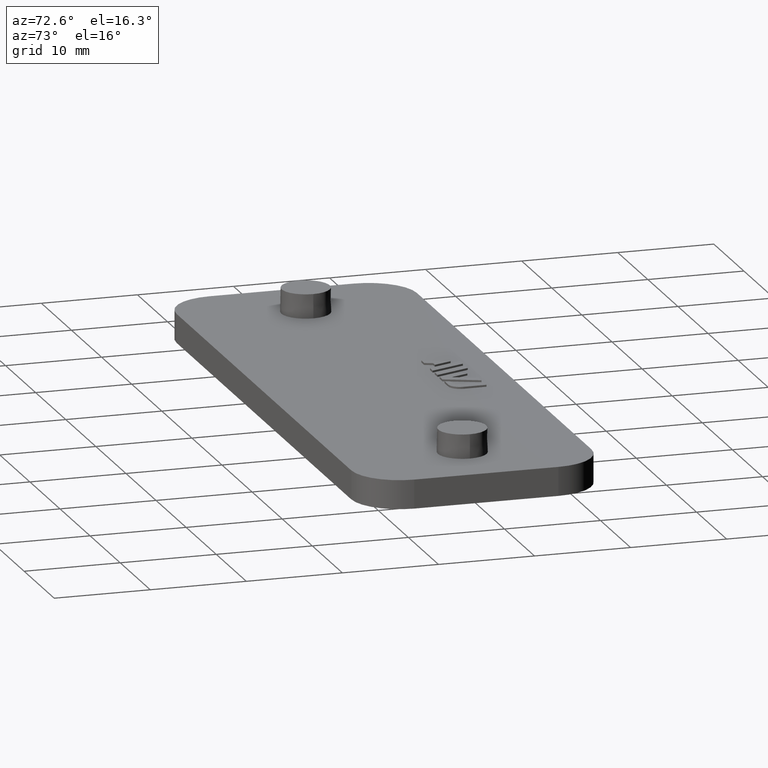
[diagram: clean part render]
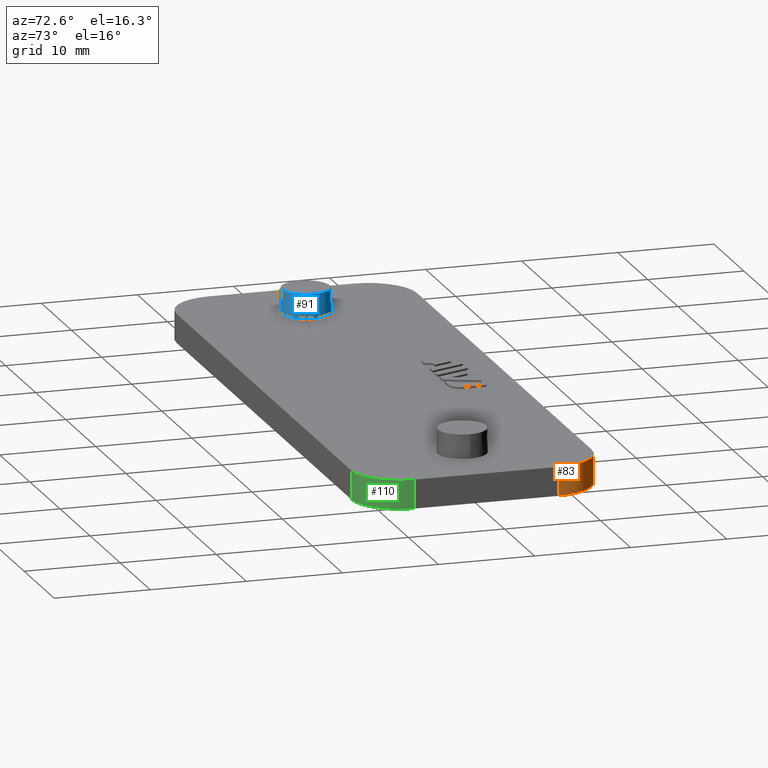
[diagram: same view with three faces highlighted in distinct colors, each labeled with its STEP entity id]
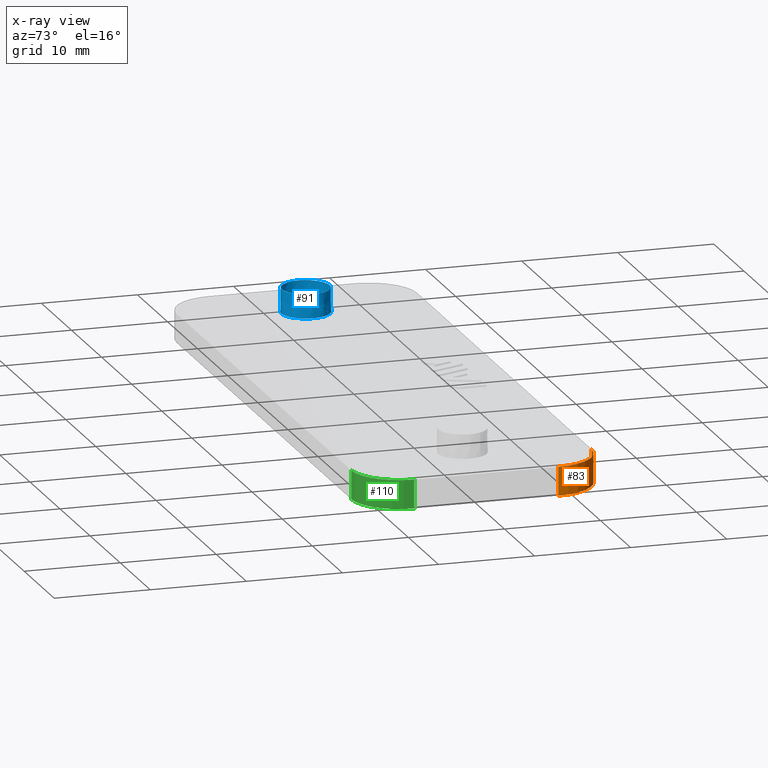
[diagram: x-ray of the same camera — body ghosted, the three highlighted faces saturated]
A machine part, auxiliary view with three faces highlighted in distinct colors.
The next image is the same camera in x-ray (body ghosted, the three faces saturated) — at least one of them is partly hidden behind the body in this view.
Their STEP definitions:

[orange] entity #83 — the highlighted cylindrical surface (partial cylindrical patch) has radius 5 mm, axis along (-0, -0, -1).
#83 = ADVANCED_FACE( '', ( #162 ), #163, .T. );
#162 = FACE_OUTER_BOUND( '', #295, .T. );
#163 = CYLINDRICAL_SURFACE( '', #296, 4.99999999999999 );
#295 = EDGE_LOOP( '', ( #509, #510, #511, #512 ) );
#296 = AXIS2_PLACEMENT_3D( '', #513, #514, #515 );
#509 = ORIENTED_EDGE( '', *, *, #920, .T. );
#510 = ORIENTED_EDGE( '', *, *, #895, .T. );
#511 = ORIENTED_EDGE( '', *, *, #950, .F. );
#512 = ORIENTED_EDGE( '', *, *, #946, .F. );
#513 = CARTESIAN_POINT( '', ( 29.0000000000000, 7.49999999999999, -72.4734112955315 ) );
#514 = DIRECTION( '', ( -1.60751816480226E-016, -1.81794180051289E-016, -1.00000000000000 ) );
#515 = DIRECTION( '', ( 1.00000000000000, 4.62592926927148E-016, -1.60751816480226E-016 ) );
#895 = EDGE_CURVE( '', #1057, #1055, #1058, .T. );
#920 = EDGE_CURVE( '', #1106, #1057, #1107, .T. );
#946 = EDGE_CURVE( '', #1106, #1143, #1155, .T. );
#950 = EDGE_CURVE( '', #1143, #1055, #1159, .T. );
#1055 = VERTEX_POINT( '', #1314 );
#1057 = VERTEX_POINT( '', #1317 );
#1058 = CIRCLE( '', #1318, 4.99999999999999 );
#1106 = VERTEX_POINT( '', #1384 );
#1107 = LINE( '', #1385, #1386 );
#1143 = VERTEX_POINT( '', #1441 );
#1155 = CIRCLE( '', #1456, 4.99999999999999 );
#1159 = LINE( '', #1463, #1464 );
#1314 = CARTESIAN_POINT( '', ( 34.0000000000000, 7.50000000000002, 3.00000000000002 ) );
#1317 = CARTESIAN_POINT( '', ( 29.0000000000000, 12.5000000000000, 3.00000000000002 ) );
#1318 = AXIS2_PLACEMENT_3D( '', #1673, #1674, #1675 );
#1384 = CARTESIAN_POINT( '', ( 29.0000000000000, 12.5000000000000, 1.31124088366755E-014 ) );
#1385 = CARTESIAN_POINT( '', ( 29.0000000000000, 12.5000000000000, -72.4734112955315 ) );
#1386 = VECTOR( '', #1712, 1000.00000000000 );
#1441 = CARTESIAN_POINT( '', ( 34.0000000000000, 7.50000000000002, 1.34185604251311E-014 ) );
#1456 = AXIS2_PLACEMENT_3D( '', #1744, #1745, #1746 );
#1463 = CARTESIAN_POINT( '', ( 34.0000000000000, 7.50000000000000, -72.4734112955315 ) );
#1464 = VECTOR( '', #1750, 1000.00000000000 );
#1673 = CARTESIAN_POINT( '', ( 29.0000000000000, 7.50000000000000, 3.00000000000002 ) );
#1674 = DIRECTION( '', ( 0.000000000000000, -6.12303176911189E-017, -1.00000000000000 ) );
#1675 = DIRECTION( '', ( 0.000000000000000, 1.00000000000000, -6.12303176911189E-017 ) );
#1712 = DIRECTION( '', ( 1.60751816480226E-016, 1.81794180051289E-016, 1.00000000000000 ) );
#1744 = CARTESIAN_POINT( '', ( 29.0000000000000, 7.50000000000000, 1.34185604251311E-014 ) );
#1745 = DIRECTION( '', ( 0.000000000000000, -6.12303176911189E-017, -1.00000000000000 ) );
#1746 = DIRECTION( '', ( 0.000000000000000, 1.00000000000000, -6.12303176911189E-017 ) );
#1750 = DIRECTION( '', ( 1.60751816480226E-016, 1.81794180051289E-016, 1.00000000000000 ) );

[blue] entity #91 — the highlighted conical surface has half-angle 1 deg.
#91 = ADVANCED_FACE( '', ( #178, #179 ), #180, .T. );
#178 = FACE_OUTER_BOUND( '', #311, .T. );
#179 = FACE_BOUND( '', #312, .T. );
#180 = CONICAL_SURFACE( '', #313, 2.50000000000000, 0.0174532925199433 );
#311 = EDGE_LOOP( '', ( #569 ) );
#312 = EDGE_LOOP( '', ( #570 ) );
#313 = AXIS2_PLACEMENT_3D( '', #571, #572, #573 );
#569 = ORIENTED_EDGE( '', *, *, #902, .T. );
#570 = ORIENTED_EDGE( '', *, *, #963, .F. );
#571 = CARTESIAN_POINT( '', ( -26.0000000000000, -1.63332346779510E-015, 5.50000000000002 ) );
#572 = DIRECTION( '', ( 0.000000000000000, -6.12303176911189E-017, -1.00000000000000 ) );
#573 = DIRECTION( '', ( 0.000000000000000, 1.00000000000000, -6.12303176911189E-017 ) );
#902 = EDGE_CURVE( '', #1070, #1070, #1071, .T. );
#963 = EDGE_CURVE( '', #1177, #1177, #1178, .T. );
#1070 = VERTEX_POINT( '', #1333 );
#1071 = CIRCLE( '', #1334, 2.54363766232054 );
#1177 = VERTEX_POINT( '', #1492 );
#1178 = CIRCLE( '', #1493, 2.50000000000000 );
#1333 = CARTESIAN_POINT( '', ( -26.0000000000000, -2.54363766232054, 3.00000000000002 ) );
#1334 = AXIS2_PLACEMENT_3D( '', #1688, #1689, #1690 );
#1492 = CARTESIAN_POINT( '', ( -23.5000000000000, -2.39870243893409E-015, 5.50000000000002 ) );
#1493 = AXIS2_PLACEMENT_3D( '', #1767, #1768, #1769 );
#1688 = CARTESIAN_POINT( '', ( -26.0000000000000, -1.78639926202290E-015, 3.00000000000002 ) );
#1689 = DIRECTION( '', ( 0.000000000000000, 6.12303176911189E-017, 1.00000000000000 ) );
#1690 = DIRECTION( '', ( 0.000000000000000, -1.00000000000000, 6.12303176911189E-017 ) );
#1767 = CARTESIAN_POINT( '', ( -26.0000000000000, -1.63332346779510E-015, 5.50000000000002 ) );
#1768 = DIRECTION( '', ( 0.000000000000000, 6.12303176911189E-017, 1.00000000000000 ) );
#1769 = DIRECTION( '', ( 1.00000000000000, -3.06151588455595E-016, 1.87457590227768E-032 ) );

[green] entity #110 — the highlighted cylindrical surface (partial cylindrical patch) has radius 5 mm, axis along (-0, -0, -1).
#110 = ADVANCED_FACE( '', ( #218 ), #219, .T. );
#218 = FACE_OUTER_BOUND( '', #351, .T. );
#219 = CYLINDRICAL_SURFACE( '', #352, 5.00000000000000 );
#351 = EDGE_LOOP( '', ( #696, #697, #698, #699 ) );
#352 = AXIS2_PLACEMENT_3D( '', #700, #701, #702 );
#696 = ORIENTED_EDGE( '', *, *, #951, .T. );
#697 = ORIENTED_EDGE( '', *, *, #893, .T. );
#698 = ORIENTED_EDGE( '', *, *, #964, .F. );
#699 = ORIENTED_EDGE( '', *, *, #941, .F. );
#700 = CARTESIAN_POINT( '', ( 29.0000000000000, -7.50000000000001, -72.4734112955315 ) );
#701 = DIRECTION( '', ( -1.60751816480226E-016, -1.81794180051289E-016, -1.00000000000000 ) );
#702 = DIRECTION( '', ( 1.00000000000000, 4.62592926927148E-016, -1.60751816480226E-016 ) );
#893 = EDGE_CURVE( '', #1052, #1053, #1054, .T. );
#941 = EDGE_CURVE( '', #1144, #1146, #1147, .T. );
#951 = EDGE_CURVE( '', #1144, #1052, #1160, .T. );
#964 = EDGE_CURVE( '', #1146, #1053, #1179, .T. );
#1052 = VERTEX_POINT( '', #1311 );
#1053 = VERTEX_POINT( '', #1312 );
#1054 = CIRCLE( '', #1313, 5.00000000000000 );
#1144 = VERTEX_POINT( '', #1442 );
#1146 = VERTEX_POINT( '', #1445 );
#1147 = CIRCLE( '', #1446, 5.00000000000000 );
#1160 = LINE( '', #1465, #1466 );
#1179 = LINE( '', #1494, #1495 );
#1311 = CARTESIAN_POINT( '', ( 34.0000000000000, -7.50000000000000, 3.00000000000002 ) );
#1312 = CARTESIAN_POINT( '', ( 29.0000000000000, -12.5000000000000, 3.00000000000002 ) );
#1313 = AXIS2_PLACEMENT_3D( '', #1669, #1670, #1671 );
#1442 = CARTESIAN_POINT( '', ( 34.0000000000000, -7.50000000000000, 1.43370151904978E-014 ) );
#1445 = CARTESIAN_POINT( '', ( 29.0000000000000, -12.5000000000000, 1.46431667789534E-014 ) );
#1446 = AXIS2_PLACEMENT_3D( '', #1733, #1734, #1735 );
#1465 = CARTESIAN_POINT( '', ( 34.0000000000000, -7.50000000000001, -72.4734112955315 ) );
#1466 = VECTOR( '', #1751, 1000.00000000000 );
#1494 = CARTESIAN_POINT( '', ( 29.0000000000000, -12.5000000000000, -72.4734112955315 ) );
#1495 = VECTOR( '', #1770, 1000.00000000000 );
#1669 = CARTESIAN_POINT( '', ( 29.0000000000000, -7.50000000000000, 3.00000000000002 ) );
#1670 = DIRECTION( '', ( 0.000000000000000, -6.12303176911189E-017, -1.00000000000000 ) );
#1671 = DIRECTION( '', ( 0.000000000000000, 1.00000000000000, -6.12303176911189E-017 ) );
#1733 = CARTESIAN_POINT( '', ( 29.0000000000000, -7.50000000000000, 1.43370151904978E-014 ) );
#1734 = DIRECTION( '', ( 0.000000000000000, -6.12303176911189E-017, -1.00000000000000 ) );
#1735 = DIRECTION( '', ( 0.000000000000000, 1.00000000000000, -6.12303176911189E-017 ) );
#1751 = DIRECTION( '', ( 1.60751816480226E-016, 1.81794180051289E-016, 1.00000000000000 ) );
#1770 = DIRECTION( '', ( 1.60751816480226E-016, 1.81794180051289E-016, 1.00000000000000 ) );